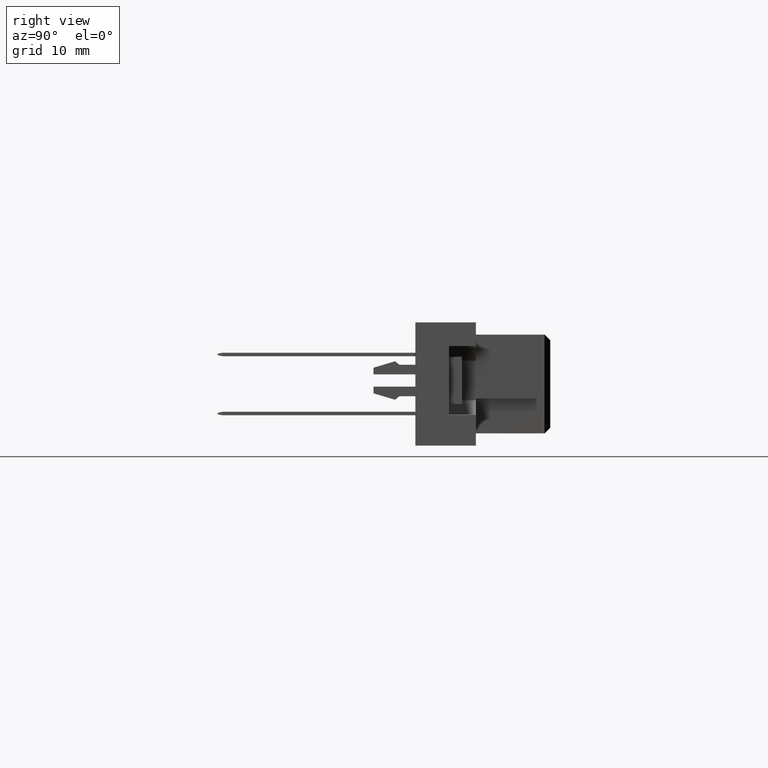
[diagram: clean part render]
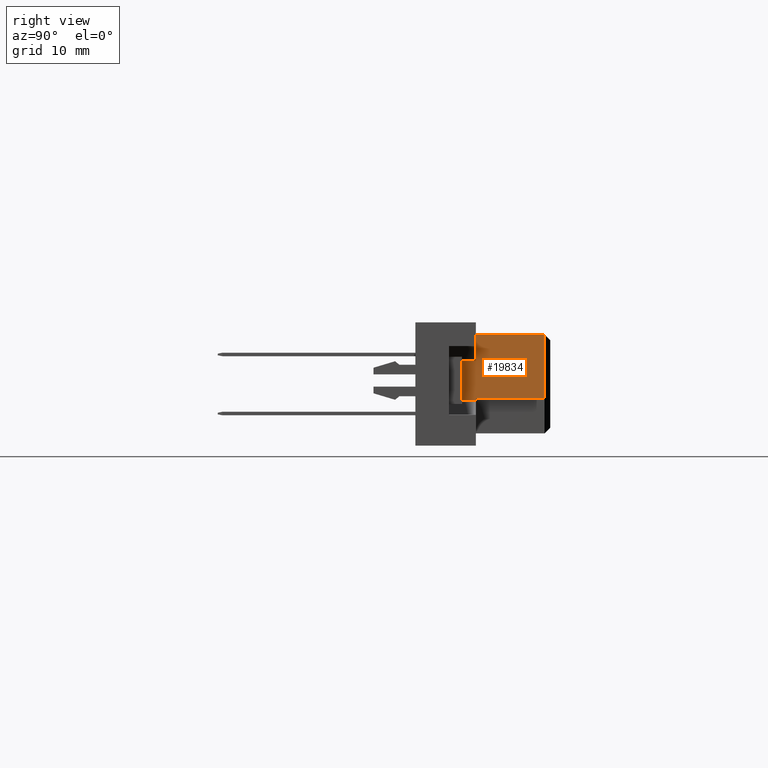
[diagram: same view with one face highlighted and labeled with its STEP entity id]
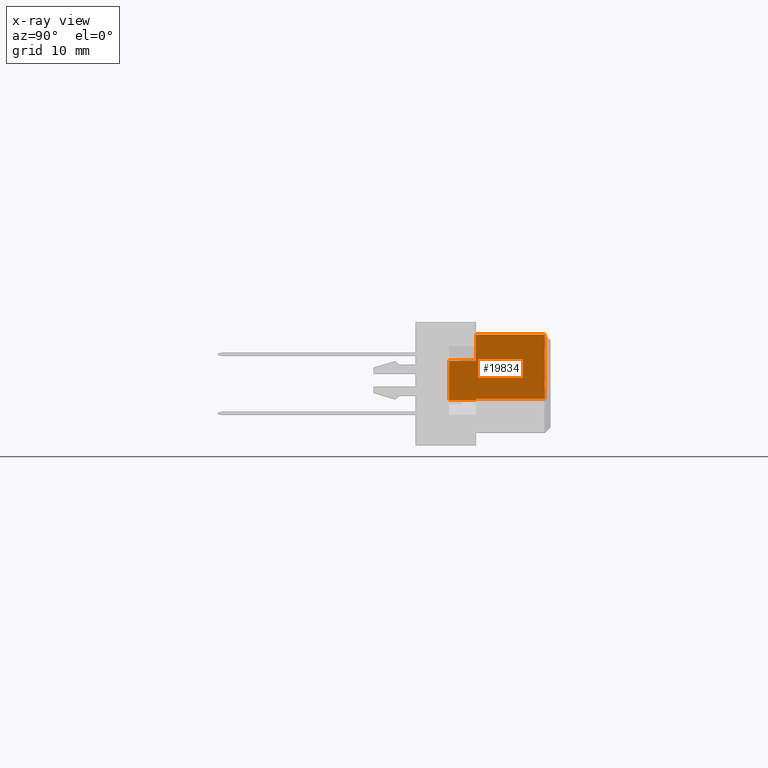
[diagram: x-ray of the same camera — body ghosted, the highlighted face saturated]
A machine part, right view. The second image highlights one B-rep face of the part: STEP entity #19834.
The next image is the same camera in x-ray: the body ghosted, the highlighted face saturated — about 0% of this face is hidden behind the body in this view.
In plain terms, the highlighted planar face has unit normal (1, 0, 0).
Its self-contained STEP definition (entity closure, byte-faithful):
#847 = DIRECTION ( 'NONE',  ( -0.0000000000000000000, 1.000000000000000000, -0.0000000000000000000 ) ) ;
#1032 = EDGE_LOOP ( 'NONE', ( #10276, #14936, #15828, #7073, #4161, #3611, #11114, #19325 ) ) ;
#1141 = CARTESIAN_POINT ( 'NONE',  ( 22.19999999999999218, -0.5000000000000143219, -1.249999999999995115 ) ) ;
#1179 = DIRECTION ( 'NONE',  ( -0.0000000000000000000, 1.000000000000000000, -0.0000000000000000000 ) ) ;
#1263 = DIRECTION ( 'NONE',  ( 0.0000000000000000000, 0.0000000000000000000, -1.000000000000000000 ) ) ;
#1266 = LINE ( 'NONE', #7651, #17365 ) ;
#1463 = EDGE_CURVE ( 'NONE', #17018, #10741, #7664, .T. ) ;
#1556 = VERTEX_POINT ( 'NONE', #10643 ) ;
#1896 = CARTESIAN_POINT ( 'NONE',  ( 22.19999999999999218, -6.400000000000001243, -1.399999999999994138 ) ) ;
#1968 = VECTOR ( 'NONE', #9578, 1000.000000000000000 ) ;
#2240 = DIRECTION ( 'NONE',  ( 1.000000000000000000, 0.0000000000000000000, 0.0000000000000000000 ) ) ;
#2908 = EDGE_CURVE ( 'NONE', #10472, #17018, #19945, .T. ) ;
#2968 = LINE ( 'NONE', #5953, #7442 ) ;
#3595 = VECTOR ( 'NONE', #17343, 1000.000000000000000 ) ;
#3611 = ORIENTED_EDGE ( 'NONE', *, *, #9873, .F. ) ;
#4049 = VERTEX_POINT ( 'NONE', #18267 ) ;
#4161 = ORIENTED_EDGE ( 'NONE', *, *, #15808, .F. ) ;
#4373 = CARTESIAN_POINT ( 'NONE',  ( 22.19999999999999218, -8.700000000000001066, 2.000000000000000000 ) ) ;
#4573 = CARTESIAN_POINT ( 'NONE',  ( 22.19999999999999218, -8.700000000000001066, -1.399999999999994582 ) ) ;
#5643 = FACE_OUTER_BOUND ( 'NONE', #1032, .T. ) ;
#5771 = LINE ( 'NONE', #4373, #17553 ) ;
#5953 = CARTESIAN_POINT ( 'NONE',  ( 22.19999999999999218, -6.400000000000001243, 4.250000000000000888 ) ) ;
#7073 = ORIENTED_EDGE ( 'NONE', *, *, #16871, .T. ) ;
#7137 = VERTEX_POINT ( 'NONE', #19843 ) ;
#7337 = CARTESIAN_POINT ( 'NONE',  ( 22.19999999999999218, -6.400000000000001243, 4.250000000000000888 ) ) ;
#7442 = VECTOR ( 'NONE', #1263, 1000.000000000000000 ) ;
#7575 = CARTESIAN_POINT ( 'NONE',  ( 22.19999999999999218, -6.400000000000000355, -1.249999999999995115 ) ) ;
#7651 = CARTESIAN_POINT ( 'NONE',  ( 22.19999999999999218, -0.5000000000000143219, 4.250000000000000888 ) ) ;
#7664 = LINE ( 'NONE', #7575, #18943 ) ;
#7776 = LINE ( 'NONE', #4573, #1968 ) ;
#8060 = CARTESIAN_POINT ( 'NONE',  ( 22.19999999999999218, -8.700000000000001066, -1.399999999999994582 ) ) ;
#9430 = VERTEX_POINT ( 'NONE', #12598 ) ;
#9578 = DIRECTION ( 'NONE',  ( -0.0000000000000000000, 1.000000000000000000, 6.123031769111886291E-17 ) ) ;
#9873 = EDGE_CURVE ( 'NONE', #16430, #9430, #10887, .T. ) ;
#10090 = EDGE_CURVE ( 'NONE', #7137, #1556, #15496, .T. ) ;
#10276 = ORIENTED_EDGE ( 'NONE', *, *, #1463, .T. ) ;
#10329 = VECTOR ( 'NONE', #11789, 1000.000000000000000 ) ;
#10472 = VERTEX_POINT ( 'NONE', #1896 ) ;
#10643 = CARTESIAN_POINT ( 'NONE',  ( 22.19999999999999218, -0.5000000000000143219, 4.250000000000000888 ) ) ;
#10741 = VERTEX_POINT ( 'NONE', #1141 ) ;
#10887 = LINE ( 'NONE', #10989, #3595 ) ;
#10950 = DIRECTION ( 'NONE',  ( 0.0000000000000000000, 0.0000000000000000000, 1.000000000000000000 ) ) ;
#10989 = CARTESIAN_POINT ( 'NONE',  ( 22.19999999999999218, -8.700000000000001066, -1.399999999999994582 ) ) ;
#11114 = ORIENTED_EDGE ( 'NONE', *, *, #15899, .T. ) ;
#11564 = CARTESIAN_POINT ( 'NONE',  ( 22.19999999999999218, -6.400000000000000355, -1.249999999999995115 ) ) ;
#11789 = DIRECTION ( 'NONE',  ( 0.0000000000000000000, 0.0000000000000000000, 1.000000000000000000 ) ) ;
#12598 = CARTESIAN_POINT ( 'NONE',  ( 22.19999999999999218, -8.700000000000001066, 2.000000000000000000 ) ) ;
#14936 = ORIENTED_EDGE ( 'NONE', *, *, #18184, .T. ) ;
#15496 = LINE ( 'NONE', #7337, #18157 ) ;
#15808 = EDGE_CURVE ( 'NONE', #9430, #4049, #5771, .T. ) ;
#15828 = ORIENTED_EDGE ( 'NONE', *, *, #10090, .F. ) ;
#15899 = EDGE_CURVE ( 'NONE', #16430, #10472, #7776, .T. ) ;
#16430 = VERTEX_POINT ( 'NONE', #8060 ) ;
#16871 = EDGE_CURVE ( 'NONE', #7137, #4049, #2968, .T. ) ;
#17018 = VERTEX_POINT ( 'NONE', #11564 ) ;
#17343 = DIRECTION ( 'NONE',  ( 0.0000000000000000000, 0.0000000000000000000, 1.000000000000000000 ) ) ;
#17365 = VECTOR ( 'NONE', #10950, 1000.000000000000000 ) ;
#17553 = VECTOR ( 'NONE', #18685, 1000.000000000000000 ) ;
#18157 = VECTOR ( 'NONE', #847, 1000.000000000000000 ) ;
#18184 = EDGE_CURVE ( 'NONE', #10741, #1556, #1266, .T. ) ;
#18267 = CARTESIAN_POINT ( 'NONE',  ( 22.19999999999999218, -6.400000000000001243, 2.000000000000000000 ) ) ;
#18374 = AXIS2_PLACEMENT_3D ( 'NONE', #18670, #2240, #18463 ) ;
#18463 = DIRECTION ( 'NONE',  ( 0.0000000000000000000, 0.0000000000000000000, -1.000000000000000000 ) ) ;
#18670 = CARTESIAN_POINT ( 'NONE',  ( 22.19999999999999218, -6.400000000000001243, 4.250000000000000888 ) ) ;
#18685 = DIRECTION ( 'NONE',  ( -0.0000000000000000000, 1.000000000000000000, 6.123031769111886291E-17 ) ) ;
#18943 = VECTOR ( 'NONE', #1179, 1000.000000000000000 ) ;
#19325 = ORIENTED_EDGE ( 'NONE', *, *, #2908, .T. ) ;
#19834 = ADVANCED_FACE ( 'NONE', ( #5643 ), #20164, .T. ) ;
#19843 = CARTESIAN_POINT ( 'NONE',  ( 22.19999999999999218, -6.400000000000001243, 4.250000000000000888 ) ) ;
#19945 = LINE ( 'NONE', #20047, #10329 ) ;
#20047 = CARTESIAN_POINT ( 'NONE',  ( 22.19999999999999218, -6.400000000000001243, -1.399999999999994138 ) ) ;
#20164 = PLANE ( 'NONE',  #18374 ) ;